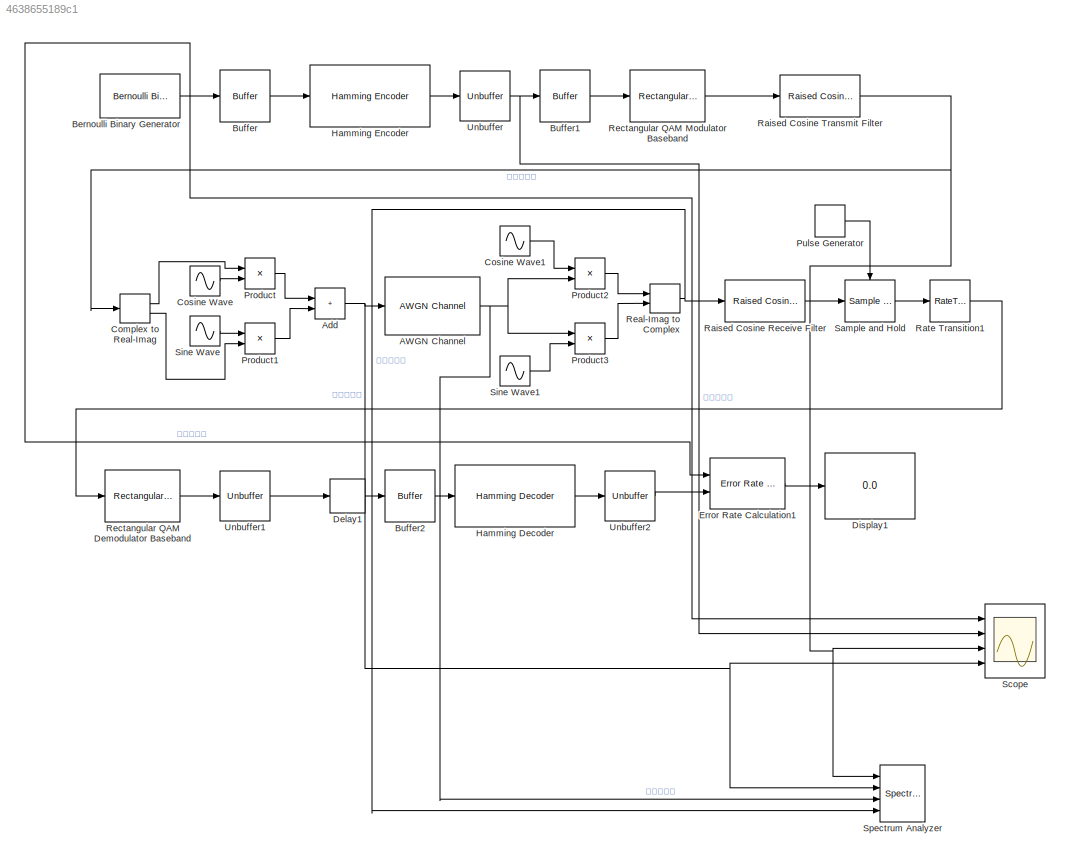
MODEL slx_4638655189c1
KIND model
CONFIG AbsTol = auto
CONFIG EnableMultiTasking = off
CONFIG FixedStep = auto
CONFIG MaxStep = auto
CONFIG MinStep = auto
CONFIG RelTol = 1e-3
CONFIG SampleTimeConstraint = Unconstrained
CONFIG SolverName = VariableStepAuto
CONFIG StartTime = 0.0
CONFIG StopTime = 10
BLOCK [Reference] AWGN Channel  REF=commchan3/AWGN
Channel
  Ports = [1, 1]
  SourceBlock = commchan3/AWGN\nChannel
  SourceProductBaseCode = CM
  SourceType = AWGN Channel
  UserDataPersistent = on
BLOCK [Sum] Add
  IconShape = rectangular
  Ports = [2, 1]
BLOCK [Reference] Bernoulli Binary Generator  REF=commrandsrc3/Bernoulli Binary
Generator
  Ports = [0, 1]
  SourceBlock = commrandsrc3/Bernoulli Binary\nGenerator
  SourceProductBaseCode = CM
  SourceType = Bernoulli Binary Generator
BLOCK [Buffer] Buffer
  N = 2^m-m-1
  OutputFrames = off
BLOCK [Buffer] Buffer1
  N = log2(Q)
  OutputFrames = off
BLOCK [Buffer] Buffer2
  N = 2^m-1
  OutputFrames = off
BLOCK [ComplexToRealImag] Complex to Real-Imag
  Ports = [1, 2]
BLOCK [Sin] Cosine Wave
  Amplitude = sqrt(2)
  Frequency = 2*pi*(10e3)
  Phase = pi/2
  Ports = [0, 1]
  SampleTime = 1e-6
BLOCK [Sin] Cosine Wave1
  Amplitude = sqrt(2)
  Frequency = 2*pi*(10e3)
  Phase = pi/2
  Ports = [0, 1]
  SampleTime = 1e-6
BLOCK [Delay] Delay1
  DelayLength = 1
  InitialCondition = 0
  InputPortMap = u0
  Ports = [1, 1]
BLOCK [Display] Display1
  Decimation = 1
  Ports = [1]
BLOCK [Reference] Error Rate Calculation1  REF=commsink2/Error Rate
Calculation
  Ports = [2, 1]
  SourceBlock = commsink2/Error Rate\nCalculation
  SourceProductBaseCode = CM
  SourceType = Error Rate Calculation
BLOCK [Reference] Hamming Decoder  REF=commblkcod2/Hamming Decoder
  Ports = [1, 1]
  SourceBlock = commblkcod2/Hamming Decoder
  SourceProductBaseCode = CM
  SourceType = Hamming Decoder
BLOCK [Reference] Hamming Encoder  REF=commblkcod2/Hamming Encoder
  Ports = [1, 1]
  SourceBlock = commblkcod2/Hamming Encoder
  SourceProductBaseCode = CM
  SourceType = Hamming Encoder
BLOCK [Product] Product
  Ports = [2, 1]
BLOCK [Product] Product1
  Ports = [2, 1]
BLOCK [Product] Product2
  Ports = [2, 1]
BLOCK [Product] Product3
  Ports = [2, 1]
BLOCK [DiscretePulseGenerator] Pulse Generator
  Period = 1e3
  PhaseDelay = 10
  Ports = [0, 1]
  SampleTime = 1e-6
BLOCK [Reference] Raised Cosine Receive Filter  REF=commfilt2/Raised Cosine
Receive Filter
  Ports = [1, 1]
  SourceBlock = commfilt2/Raised Cosine\nReceive Filter
  SourceProductBaseCode = CM
  SourceType = Raised Cosine Receive Filter
BLOCK [Reference] Raised Cosine Transmit Filter  REF=commfilt2/Raised Cosine
Transmit Filter
  Ports = [1, 1]
  SourceBlock = commfilt2/Raised Cosine\nTransmit Filter
  SourceProductBaseCode = CM
  SourceType = Raised Cosine Transmit Filter
BLOCK [RateTransition] Rate Transition1
  OutPortSampleTime = 1e-3
BLOCK [RealImagToComplex] Real-Imag to Complex
  Ports = [2, 1]
BLOCK [Reference] Rectangular QAM Demodulator Baseband  REF=commdigbbndam3/Rectangular QAM
Demodulator
Baseband
  Ports = [1, 1]
  SourceBlock = commdigbbndam3/Rectangular QAM\nDemodulator\nBaseband
  SourceProductBaseCode = CM
  SourceType = Rectangular QAM Demodulator Baseband
BLOCK [Reference] Rectangular QAM Modulator Baseband  REF=commdigbbndam3/Rectangular QAM
Modulator
Baseband
  Ports = [1, 1]
  SourceBlock = commdigbbndam3/Rectangular QAM\nModulator\nBaseband
  SourceProductBaseCode = CM
  SourceType = Rectangular QAM Modulator Baseband
BLOCK [Reference] Sample and Hold  REF=dspsigops/Sample
and Hold
  Ports = [1, 1, 0, 1]
  SourceBlock = dspsigops/Sample\nand Hold
  SourceProductBaseCode = DS
  SourceType = Sample and Hold
BLOCK [Scope] Scope
  Floating = off
  NumInputPorts = 4
  Ports = [4]
  ScopeSpecificationString = Simulink.scopes.TimeScopeBlockCfg('CurrentConfiguration', extmgr.ConfigurationSet(extmgr.Configuration('Core','General UI',true),extmgr.Configuration('Core','Source UI',true),extmgr.Configuration('Sources','WiredSimulink',true),extmgr.Configuration('Visuals','Time Domain',true,'SerializedDisplays',{struct('MinYLimReal','-0.125','MaxYLimReal','1.125','YLabelReal','','MinYLimMag','0.00000','MaxYLimM...<+3388ch>
BLOCK [Sin] Sine Wave
  Amplitude = sqrt(2)
  Frequency = 2*pi*(10e3)
  Phase = pi
  Ports = [0, 1]
  SampleTime = 1e-6
BLOCK [Sin] Sine Wave1
  Amplitude = sqrt(2)
  Frequency = 2*pi*(10e3)
  Phase = pi
  Ports = [0, 1]
  SampleTime = 1e-6
BLOCK [SpectrumAnalyzer] Spectrum Analyzer
  NumInputPorts = 4
  Ports = [4]
  ScopeSpecificationString = spbscopes.SpectrumAnalyzerBlockCfg('CurrentConfiguration', extmgr.ConfigurationSet(extmgr.Configuration('Core','General UI',true),extmgr.Configuration('Core','Source UI',true),extmgr.Configuration('Sources','WiredSimulink',true),extmgr.Configuration('Visuals','Spectrum',true,'AxesProperties',struct('Color',{[0 0 0],[0 0 0]},'XColor',{[0.686274509803922 0.686274509803922 0.686274509803922],[0.68627...<+2524ch>
BLOCK [Unbuffer] Unbuffer
  Ports = [1, 1]
BLOCK [Unbuffer] Unbuffer1
  Ports = [1, 1]
BLOCK [Unbuffer] Unbuffer2
  Ports = [1, 1]
NET AWGN Channel:1 -> Product2:2, Product3:1, Spectrum Analyzer:3
NET Add:1 -> AWGN Channel:1, Scope:4, Spectrum Analyzer:2
NET Bernoulli Binary Generator:1 -> Buffer:1, Error Rate Calculation1:1, Scope:1
LINE Buffer1:1 -> Rectangular QAM Modulator Baseband:1
LINE Buffer2:1 -> Hamming Decoder:1
LINE Buffer:1 -> Hamming Encoder:1
LINE Complex to Real-Imag:1 -> Product:1
LINE Complex to Real-Imag:2 -> Product1:2
LINE Cosine Wave1:1 -> Product2:1
LINE Cosine Wave:1 -> Product:2
LINE Delay1:1 -> Buffer2:1
LINE Error Rate Calculation1:1 -> Display1:1
LINE Hamming Decoder:1 -> Unbuffer2:1
LINE Hamming Encoder:1 -> Unbuffer:1
LINE Product1:1 -> Add:2
LINE Product2:1 -> Real-Imag to Complex:1
LINE Product3:1 -> Real-Imag to Complex:2
LINE Product:1 -> Add:1
LINE Pulse Generator:1 -> Sample and Hold:trigger
LINE Raised Cosine Receive Filter:1 -> Sample and Hold:1
NET Raised Cosine Transmit Filter:1 -> Complex to Real-Imag:1, Scope:3, Spectrum Analyzer:1
LINE Rate Transition1:1 -> Rectangular QAM Demodulator Baseband:1
NET Real-Imag to Complex:1 -> Raised Cosine Receive Filter:1, Spectrum Analyzer:4
LINE Rectangular QAM Demodulator Baseband:1 -> Unbuffer1:1
LINE Rectangular QAM Modulator Baseband:1 -> Raised Cosine Transmit Filter:1
LINE Sample and Hold:1 -> Rate Transition1:1
LINE Sine Wave1:1 -> Product3:2
LINE Sine Wave:1 -> Product1:1
LINE Unbuffer1:1 -> Delay1:1
LINE Unbuffer2:1 -> Error Rate Calculation1:2
NET Unbuffer:1 -> Buffer1:1, Scope:2
note: NET lines group one-source signal fan-out (src -> all destinations, sorted); 1:1 wires keep LINE
